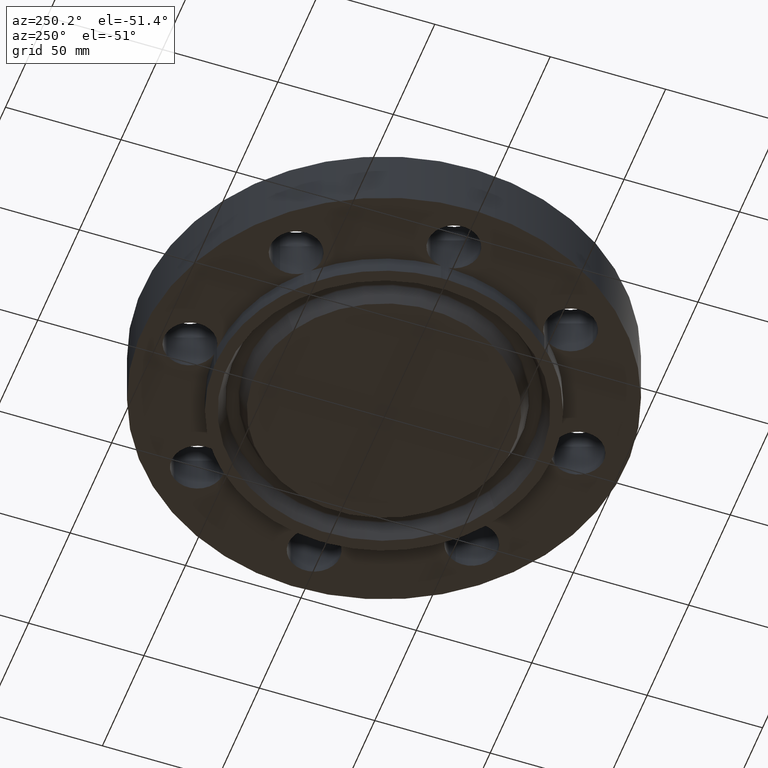
[diagram: clean part render]
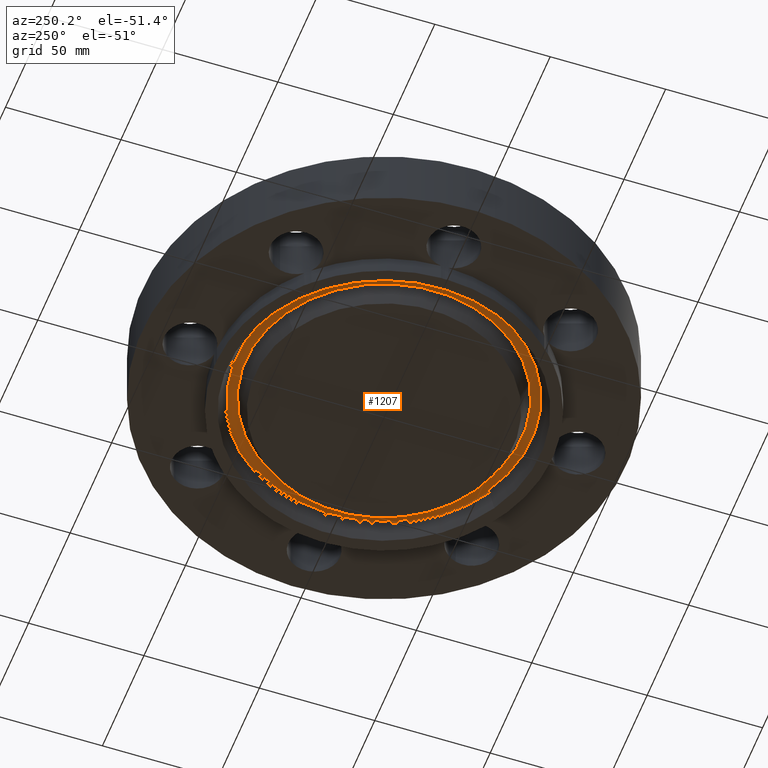
[diagram: same view with one face highlighted and labeled with its STEP entity id]
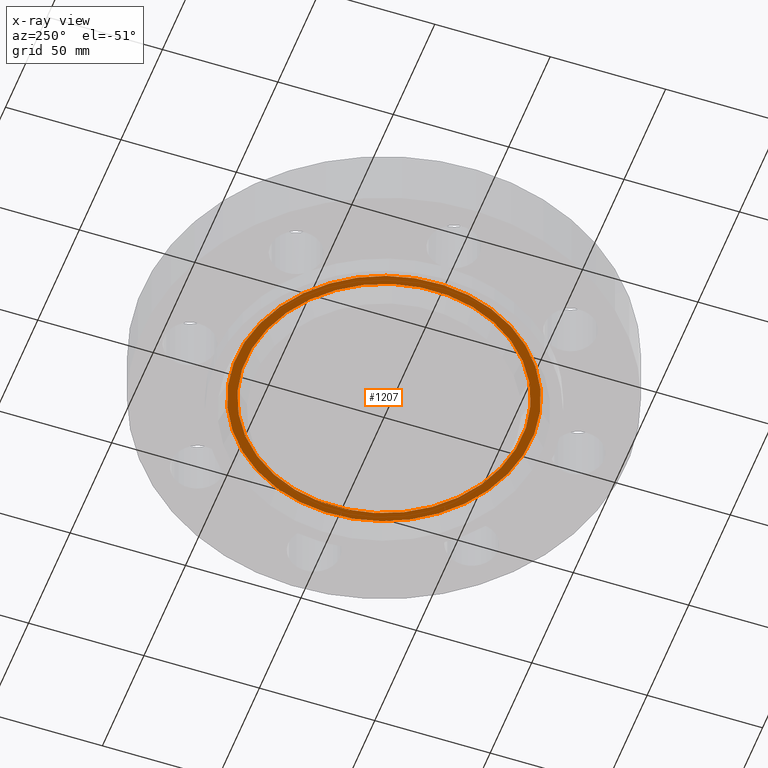
[diagram: x-ray of the same camera — body ghosted, the highlighted face saturated]
A machine part, auxiliary view. The second image highlights one B-rep face of the part: STEP entity #1207.
The next image is the same camera in x-ray: the body ghosted, the highlighted face saturated — about 0% of this face is hidden behind the body in this view.
In plain terms, the highlighted planar face has unit normal (0, 0, -1).
Its self-contained STEP definition (entity closure, byte-faithful):
#787=AXIS2_PLACEMENT_3D('Plane Axis2P3D',#784,#785,#786) ;
#1129=AXIS2_PLACEMENT_3D('Circle Axis2P3D',#1127,#1128,$) ;
#1175=AXIS2_PLACEMENT_3D('Circle Axis2P3D',#1173,#1174,$) ;
#1191=AXIS2_PLACEMENT_3D('Circle Axis2P3D',#1189,#1190,$) ;
#1200=AXIS2_PLACEMENT_3D('Circle Axis2P3D',#1198,#1199,$) ;
#784=CARTESIAN_POINT('Axis2P3D Location',(0.,2.87500000001,0.)) ;
#1124=CARTESIAN_POINT('Vertex',(-1.207449808,2.21022204813,-1.39870617276E-016)) ;
#1127=CARTESIAN_POINT('Axis2P3D Location',(0.,0.,-1.39870617276E-016)) ;
#1131=CARTESIAN_POINT('Vertex',(1.207449808,-2.21022204813,-1.39870617276E-016)) ;
#1173=CARTESIAN_POINT('Axis2P3D Location',(0.,0.,-1.39870617276E-016)) ;
#1189=CARTESIAN_POINT('Axis2P3D Location',(0.,0.,0.)) ;
#1193=CARTESIAN_POINT('Vertex',(1.12974969271,-2.06799294111,1.04902962957E-016)) ;
#1195=CARTESIAN_POINT('Vertex',(-1.12974969271,2.06799294111,1.04902962957E-016)) ;
#1198=CARTESIAN_POINT('Axis2P3D Location',(0.,0.,0.)) ;
#785=DIRECTION('Axis2P3D Direction',(0.,0.,-0.0393700787402)) ;
#786=DIRECTION('Axis2P3D XDirection',(0.0393700787402,0.,0.)) ;
#1128=DIRECTION('Axis2P3D Direction',(0.,0.,0.0393700787402)) ;
#1174=DIRECTION('Axis2P3D Direction',(0.,0.,0.0393700787402)) ;
#1190=DIRECTION('Axis2P3D Direction',(0.,0.,-0.0393700787402)) ;
#1199=DIRECTION('Axis2P3D Direction',(0.,0.,-0.0393700787402)) ;
#1186=ORIENTED_EDGE('',*,*,#1133,.F.) ;
#1187=ORIENTED_EDGE('',*,*,#1177,.F.) ;
#1204=ORIENTED_EDGE('',*,*,#1197,.T.) ;
#1205=ORIENTED_EDGE('',*,*,#1202,.T.) ;
#1206=FACE_BOUND('',#1203,.T.) ;
#1207=ADVANCED_FACE('PartBody',(#1188,#1206),#788,.T.) ;
#1130=CIRCLE('generated circle',#1129,2.51853460188) ;
#1176=CIRCLE('generated circle',#1175,2.51853460188) ;
#1192=CIRCLE('generated circle',#1191,2.35646539814) ;
#1201=CIRCLE('generated circle',#1200,2.35646539814) ;
#1133=EDGE_CURVE('',#1125,#1132,#1130,.T.) ;
#1177=EDGE_CURVE('',#1132,#1125,#1176,.T.) ;
#1197=EDGE_CURVE('',#1194,#1196,#1192,.F.) ;
#1202=EDGE_CURVE('',#1196,#1194,#1201,.F.) ;
#1185=EDGE_LOOP('',(#1186,#1187)) ;
#1203=EDGE_LOOP('',(#1204,#1205)) ;
#1188=FACE_OUTER_BOUND('',#1185,.T.) ;
#788=PLANE('',#787) ;
#1125=VERTEX_POINT('',#1124) ;
#1132=VERTEX_POINT('',#1131) ;
#1194=VERTEX_POINT('',#1193) ;
#1196=VERTEX_POINT('',#1195) ;